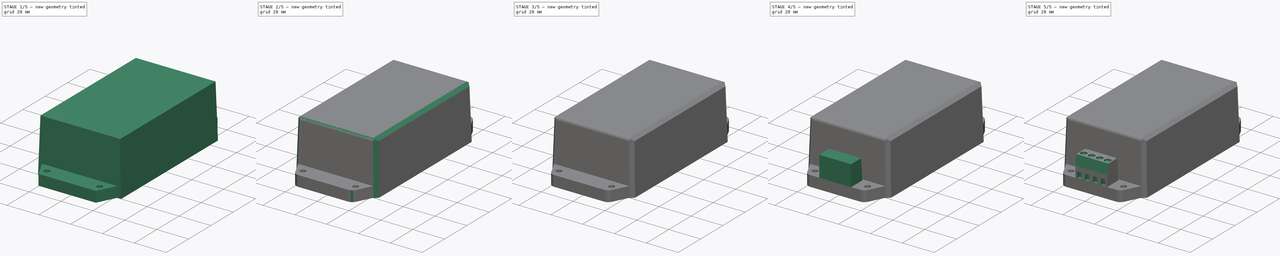
[diagram: build sequence overview — one tinted view per stage of 5, left to right]
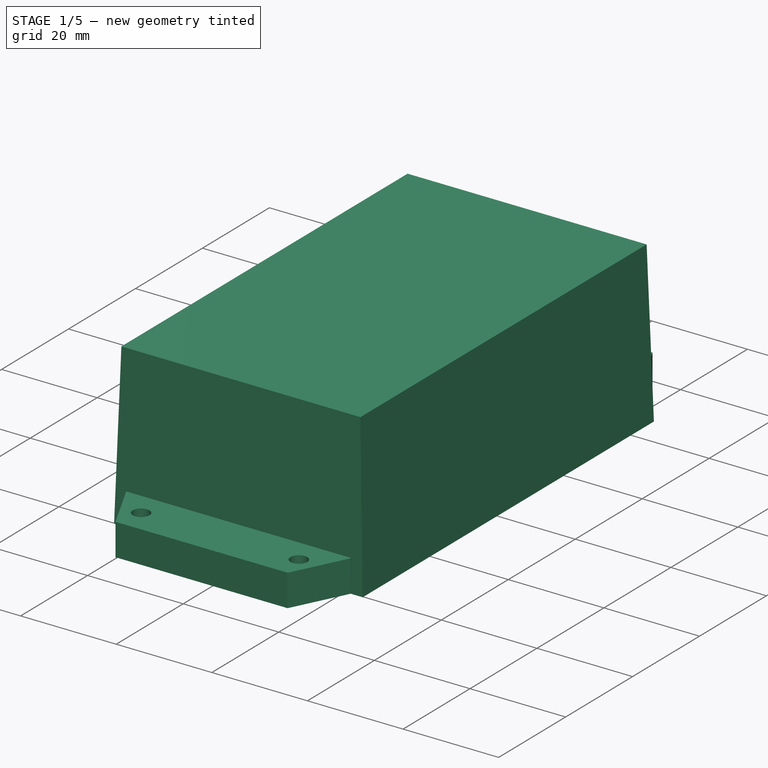
[diagram: stage 1 of 5 — iso view after this stage's code; geometry added in this stage tinted green]
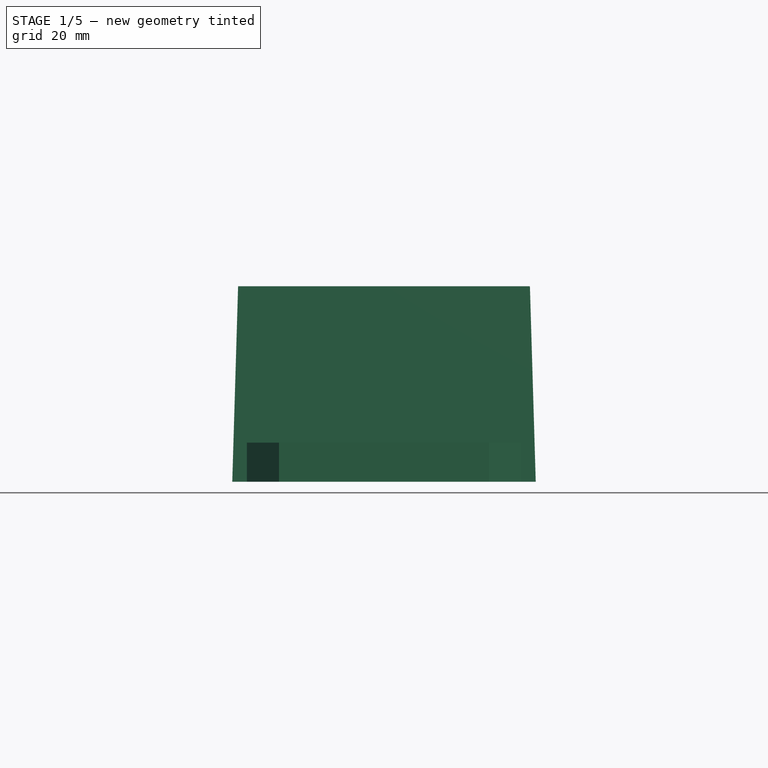
[diagram: stage 1 of 5 — front view after this stage's code; geometry added in this stage tinted green]
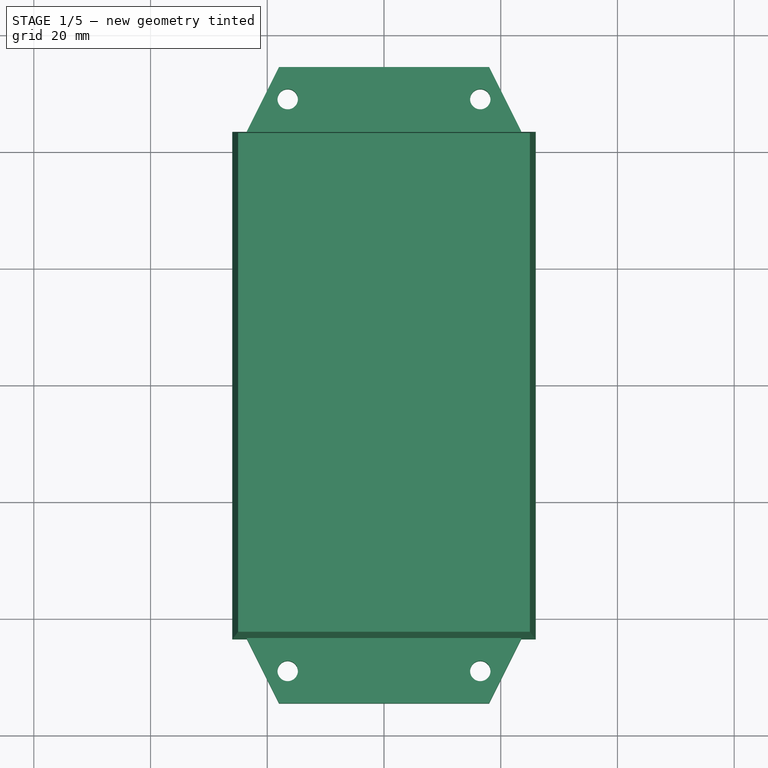
[diagram: stage 1 of 5 — top view after this stage's code; geometry added in this stage tinted green]
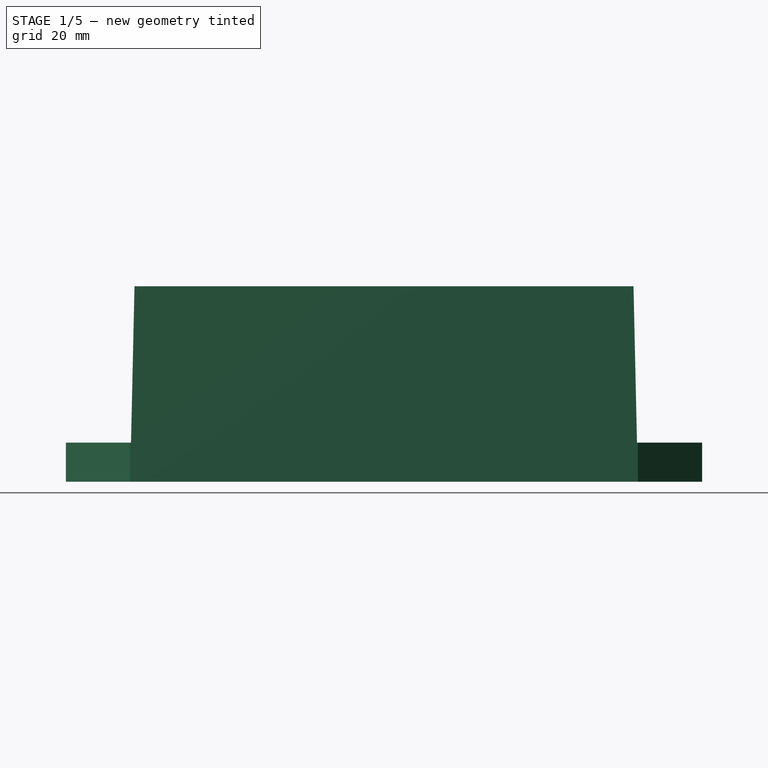
[diagram: stage 1 of 5 — right view after this stage's code; geometry added in this stage tinted green]
FCSTD DOCUMENT  (FreeCAD 0.16R6706 (Git))
Label: irm_60_12_st_power_supply
License: All rights reserved
LicenseURL: http://en.wikipedia.org/wiki/All_rights_reserved
objects: Sketcher::SketchObject×10, PartDesign::Pocket×5, PartDesign::Pad×3, PartDesign::Fillet×2, PartDesign::Draft×2, Part::Loft×1, Part::MultiFuse×1, PartDesign::Chamfer×1
note: 33 computed .brp shape members not serialized (recipe doc carries the construction recipe); baked Part::Feature solids carry a one-line shape summary decoded from their .brp

FEATURE [Sketcher::SketchObject] Sketch
  sketch-geometry (16):
    g0: LineSegment StartX=-18 StartY=54.5 StartZ=0 EndX=18 EndY=54.5 EndZ=0
    g1: LineSegment StartX=18 StartY=54.5 StartZ=0 EndX=23.5 EndY=43.5 EndZ=0
    g2: LineSegment StartX=23.5 StartY=43.5 StartZ=0 EndX=23.5 EndY=-43.5 EndZ=0
    g3: LineSegment StartX=23.5 StartY=-43.5 StartZ=0 EndX=18 EndY=-54.5 EndZ=0
    g4: LineSegment StartX=18 StartY=-54.5 StartZ=0 EndX=-18 EndY=-54.5 EndZ=0
    g5: LineSegment StartX=-18 StartY=-54.5 StartZ=0 EndX=-23.5 EndY=-43.5 EndZ=0
    g6: LineSegment StartX=-23.5 StartY=-43.5 StartZ=0 EndX=-23.5 EndY=43.5 EndZ=0
    g7: LineSegment StartX=-23.5 StartY=43.5 StartZ=0 EndX=-18 EndY=54.5 EndZ=0
    g8: LineSegment [constr] StartX=-16.5 StartY=49 StartZ=0 EndX=16.5 EndY=49 EndZ=0
    g9: LineSegment [constr] StartX=16.5 StartY=49 StartZ=0 EndX=16.5 EndY=-49 EndZ=0
    g10: LineSegment [constr] StartX=16.5 StartY=-49 StartZ=0 EndX=-16.5 EndY=-49 EndZ=0
    g11: LineSegment [constr] StartX=-16.5 StartY=-49 StartZ=0 EndX=-16.5 EndY=49 EndZ=0
    g12: Circle CenterX=-16.5 CenterY=49 CenterZ=0 NormalX=0 NormalY=0 NormalZ=1 Radius=1.75
    g13: Circle CenterX=16.5 CenterY=49 CenterZ=0 NormalX=0 NormalY=0 NormalZ=1 Radius=1.75
    g14: Circle CenterX=-16.5 CenterY=-49 CenterZ=0 NormalX=0 NormalY=0 NormalZ=1 Radius=1.75
    g15: Circle CenterX=16.5 CenterY=-49 CenterZ=0 NormalX=0 NormalY=0 NormalZ=1 Radius=1.75
  constraints (41):
    c: Horizontal(g0)
    c: Coincident(g0,g1)
    c: Coincident(g1,g2)
    c: Vertical(g2)
    c: Coincident(g2,g3)
    c: Coincident(g3,g4)
    c: Horizontal(g4)
    c: Coincident(g4,g5)
    c: Coincident(g5,g6)
    c: Vertical(g6)
    c: Coincident(g6,g7)
    c: Coincident(g7,g0)
    c: Symmetric(g0,g0,g-2)
    c: Symmetric(g6,g5,g-1)
    c: Symmetric(g4,g3,g-2)
    c: Symmetric(g1,g2,g-1)
    c: Symmetric(g6,g1,g-2)
    c: Symmetric(g0,g4,g-1)
    c: DistanceX(g6,g1) = 47
    c: DistanceY(g3,g0) = 109
    c: DistanceY(g2,g2) = 87
    c: DistanceX(g0,g0) = 36
    c: Coincident(g8,g9)
    c: Coincident(g9,g10)
    c: Coincident(g10,g11)
    c: Coincident(g11,g8)
    c: Horizontal(g8)
    c: Horizontal(g10)
    c: Vertical(g9)
    c: Vertical(g11)
    c: Coincident(g12,g8)
    c: Coincident(g13,g8)
    c: Coincident(g14,g10)
    c: Coincident(g15,g9)
    c: Equal(g12,g13)
    c: Equal(g13,g14)
    c: Equal(g14,g15)
    c: Symmetric(g9,g8,g-1)
    c: Radius(g13) = 1.75
    c: DistanceX(g8,g8) = 33
    c: DistanceY(g9,g9) = 98
FEATURE [PartDesign::Pad] Pad  label="base"
  Length = 6.7
  Length2 = 100
  Sketch = -> Sketch
  Type = 0
FEATURE [Sketcher::SketchObject] Sketch001  label="body_bottom"
  sketch-geometry (4):
    g0: LineSegment StartX=-26 StartY=43.5 StartZ=0 EndX=26 EndY=43.5 EndZ=0
    g1: LineSegment StartX=26 StartY=43.5 StartZ=0 EndX=26 EndY=-43.5 EndZ=0
    g2: LineSegment StartX=26 StartY=-43.5 StartZ=0 EndX=-26 EndY=-43.5 EndZ=0
    g3: LineSegment StartX=-26 StartY=-43.5 StartZ=0 EndX=-26 EndY=43.5 EndZ=0
  constraints (11):
    c: Coincident(g0,g1)
    c: Coincident(g1,g2)
    c: Coincident(g2,g3)
    c: Coincident(g3,g0)
    c: Horizontal(g0)
    c: Horizontal(g2)
    c: Vertical(g1)
    c: Vertical(g3)
    c: DistanceX(g0,g0) = 52
    c: DistanceY(g1,g1) = 87
    c: Symmetric(g0,g1,g-1)
FEATURE [Sketcher::SketchObject] Sketch002  label="body_top"
  Placement = pos=(0,0,33.5) rot=(0,0,1;0rad)
  sketch-geometry (4):
    g0: LineSegment StartX=-25 StartY=42.75 StartZ=0 EndX=25 EndY=42.75 EndZ=0
    g1: LineSegment StartX=25 StartY=42.75 StartZ=0 EndX=25 EndY=-42.75 EndZ=0
    g2: LineSegment StartX=25 StartY=-42.75 StartZ=0 EndX=-25 EndY=-42.75 EndZ=0
    g3: LineSegment StartX=-25 StartY=-42.75 StartZ=0 EndX=-25 EndY=42.75 EndZ=0
  constraints (11):
    c: Coincident(g0,g1)
    c: Coincident(g1,g2)
    c: Coincident(g2,g3)
    c: Coincident(g3,g0)
    c: Horizontal(g0)
    c: Horizontal(g2)
    c: Vertical(g1)
    c: Vertical(g3)
    c: Symmetric(g0,g1,g-1)
    c: DistanceX(g0,g0) = 50
    c: DistanceY(g1,g1) = 85.5
FEATURE [Part::Loft] Loft  label="body"
  Closed = false
  Ruled = false
  Sections = -> [Sketch001,Sketch002]
  Solid = true
FEATURE [Part::MultiFuse] Fusion
  Shapes = -> [Loft,Pad]
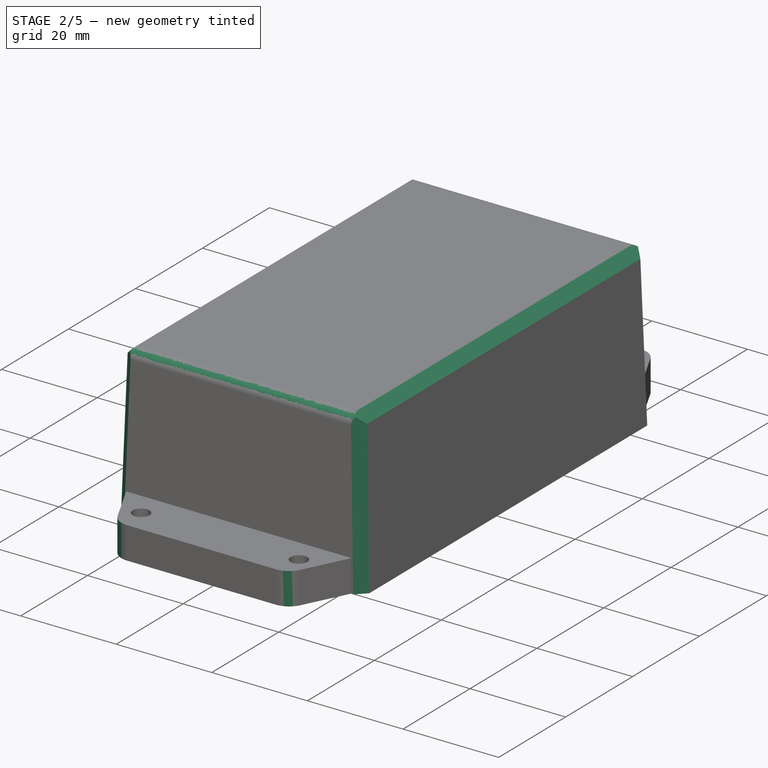
[diagram: stage 2 of 5 — iso view after this stage's code; geometry added in this stage tinted green]
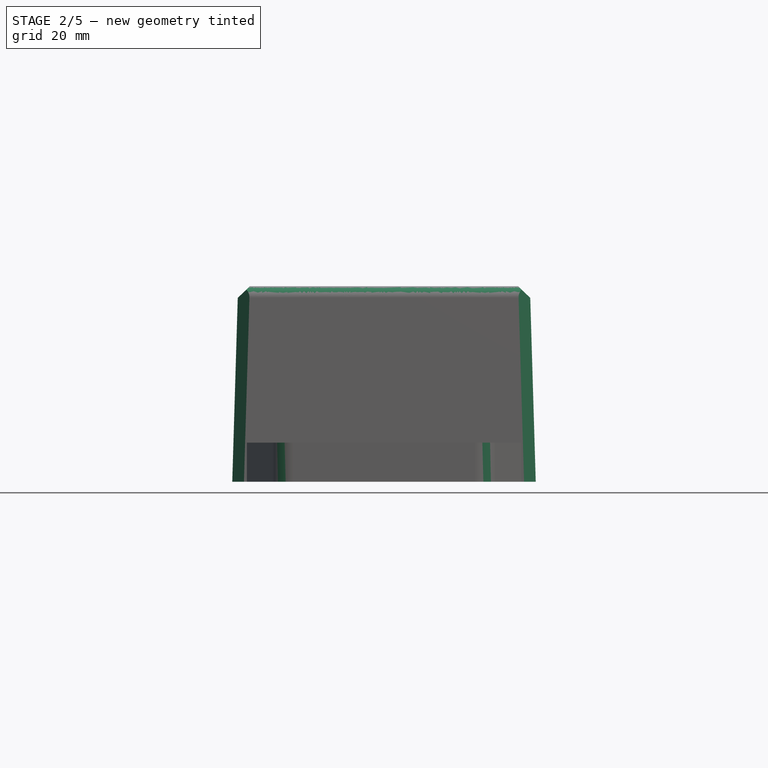
[diagram: stage 2 of 5 — front view after this stage's code; geometry added in this stage tinted green]
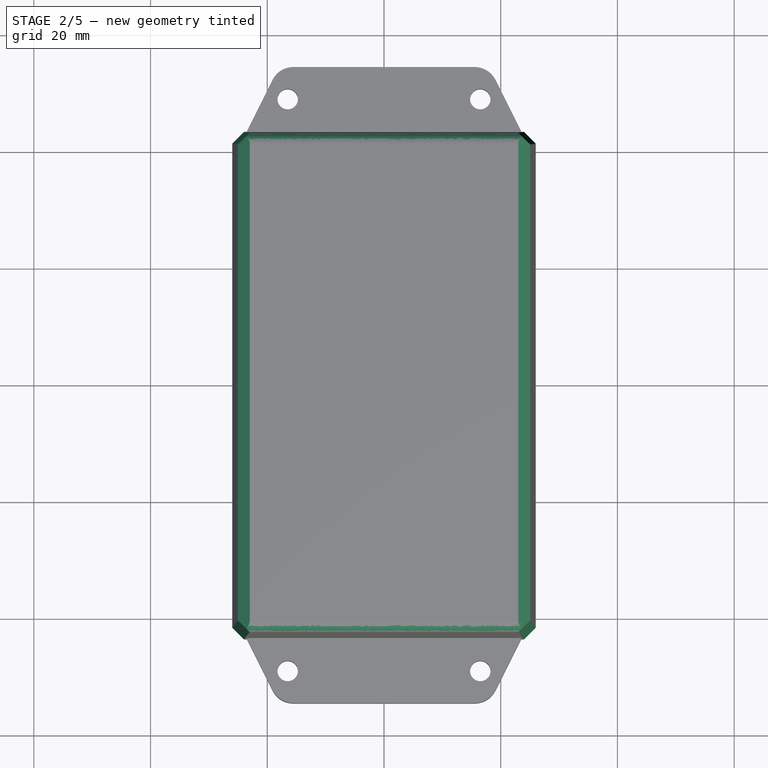
[diagram: stage 2 of 5 — top view after this stage's code; geometry added in this stage tinted green]
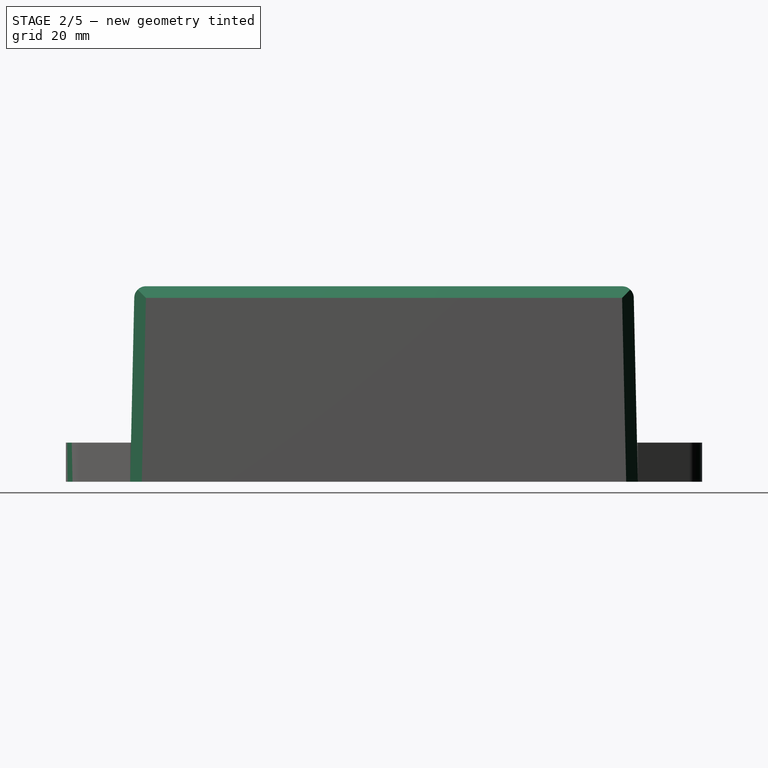
[diagram: stage 2 of 5 — right view after this stage's code; geometry added in this stage tinted green]
FEATURE [PartDesign::Chamfer] Chamfer  label="box_chamfers"
  Base = -> Fusion [Edge16,Edge14,Edge9,Edge2,Edge3,Edge4]
  Size = 2
FEATURE [PartDesign::Fillet] Fillet  label="box_fillets"
  Base = -> Chamfer [Edge15,Edge24]
  Radius = 2
FEATURE [PartDesign::Fillet] Fillet001  label="base_fillets"
  Base = -> Fillet [Edge81,Edge82,Edge60,Edge58]
  Radius = 4
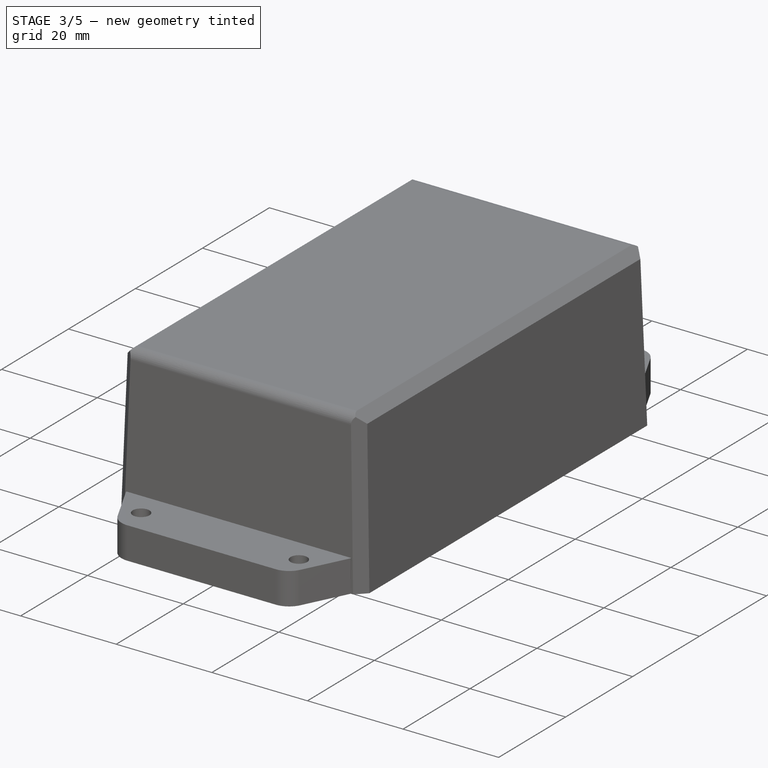
[diagram: stage 3 of 5 — iso view after this stage's code; geometry added in this stage tinted green]
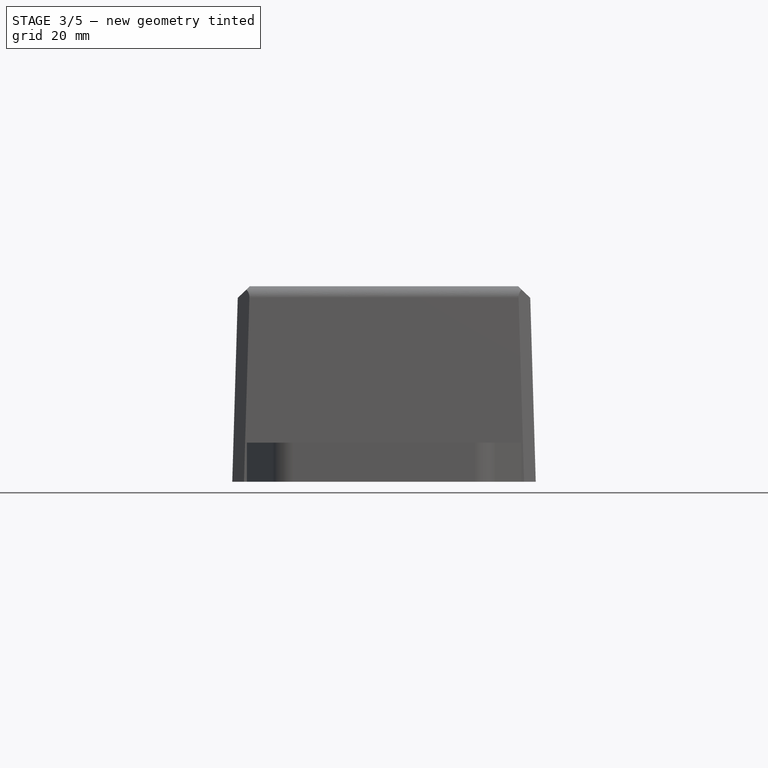
[diagram: stage 3 of 5 — front view after this stage's code; geometry added in this stage tinted green]
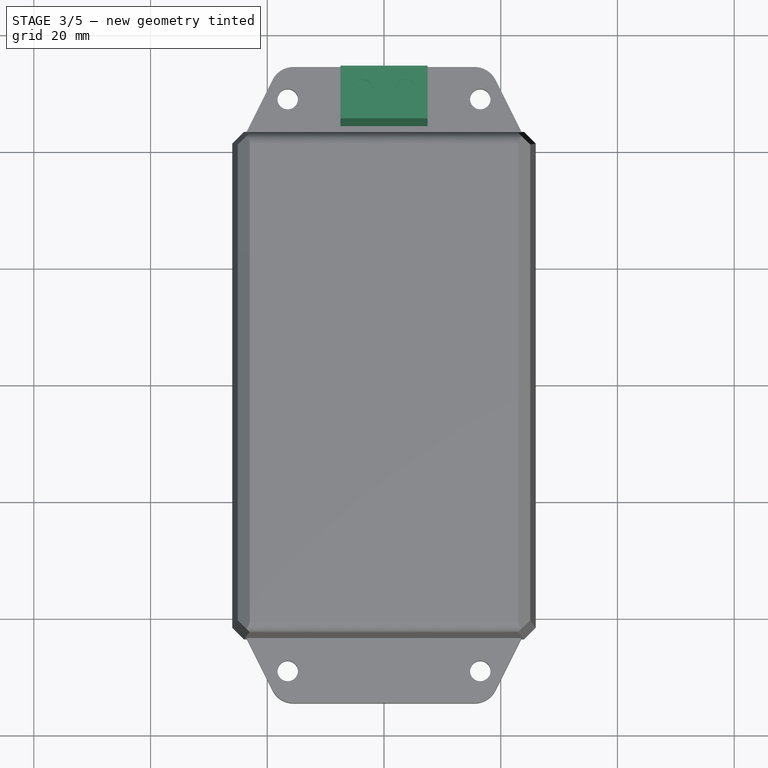
[diagram: stage 3 of 5 — top view after this stage's code; geometry added in this stage tinted green]
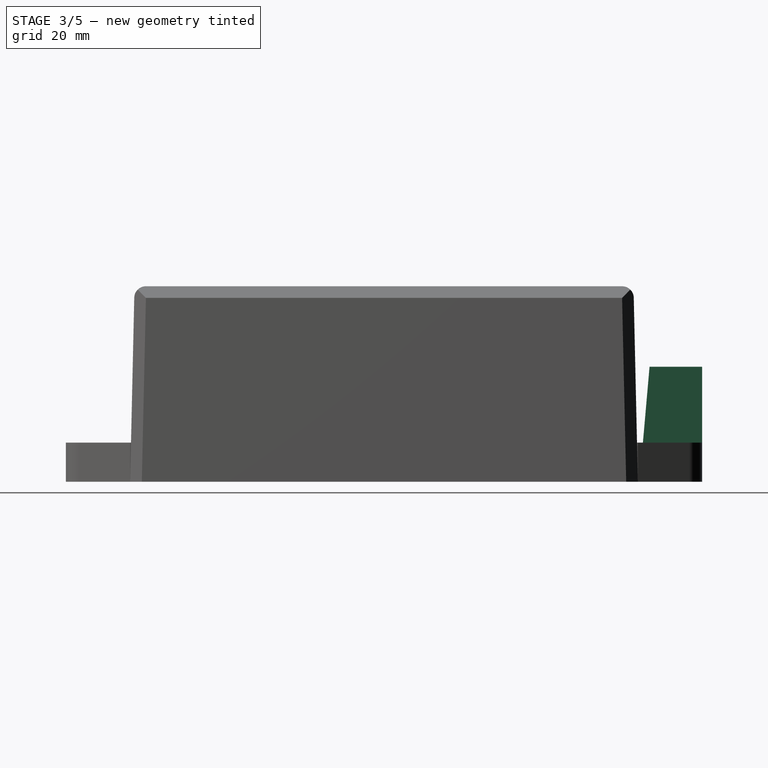
[diagram: stage 3 of 5 — right view after this stage's code; geometry added in this stage tinted green]
FEATURE [Sketcher::SketchObject] Sketch003
  ExternalGeometry = -> [Fillet001]
  Placement = pos=(0,0,6.7) rot=(0,0,1;0rad)
  Support = -> Fillet001 [Face30]
  sketch-geometry (4):
    g0: LineSegment StartX=-7.475 StartY=54.5 StartZ=0 EndX=7.475 EndY=54.5 EndZ=0
    g1: LineSegment StartX=7.475 StartY=54.5 StartZ=0 EndX=7.475 EndY=45.5 EndZ=0
    g2: LineSegment StartX=7.475 StartY=45.5 StartZ=0 EndX=-7.475 EndY=45.5 EndZ=0
    g3: LineSegment StartX=-7.475 StartY=45.5 StartZ=0 EndX=-7.475 EndY=54.5 EndZ=0
  constraints (12):
    c: Coincident(g0,g1)
    c: Coincident(g1,g2)
    c: Coincident(g2,g3)
    c: Coincident(g3,g0)
    c: Horizontal(g0)
    c: Horizontal(g2)
    c: Vertical(g1)
    c: Vertical(g3)
    c: PointOnObject(g0,g-3)
    c: Symmetric(g0,g0,g-2)
    c: DistanceX(g0,g0) = 14.95
    c: DistanceY(g1,g1) = 9
FEATURE [PartDesign::Pad] Pad001  label="input_screw_terminal"
  Length = 13
  Length2 = 100
  Sketch = -> Sketch003
  Type = 0
FEATURE [PartDesign::Draft] Draft  label="input_draft"
  Angle = 5
  Base = -> Pad001 [Face4]
  NeutralPlane = -> Pad001 [Face1]
FEATURE [Sketcher::SketchObject] Sketch004
  Placement = pos=(0,0,19.7) rot=(0,0,1;0rad)
  Support = -> Draft [Face1]
  sketch-geometry (2):
    g0: Circle CenterX=-3.75 CenterY=50.2024 CenterZ=0 NormalX=0 NormalY=0 NormalZ=1 Radius=1.95
    g1: Circle CenterX=3.75 CenterY=50.2024 CenterZ=0 NormalX=0 NormalY=0 NormalZ=1 Radius=1.95
  constraints (4):
    c: Symmetric(g0,g1,g-2)
    c: Equal(g0,g1)
    c: DistanceX(g0,g1) = 7.5
    c: Radius(g1) = 1.95
FEATURE [PartDesign::Pocket] Pocket  label="input_screws"
  Length = 1
  Sketch = -> Sketch004
  Type = 0
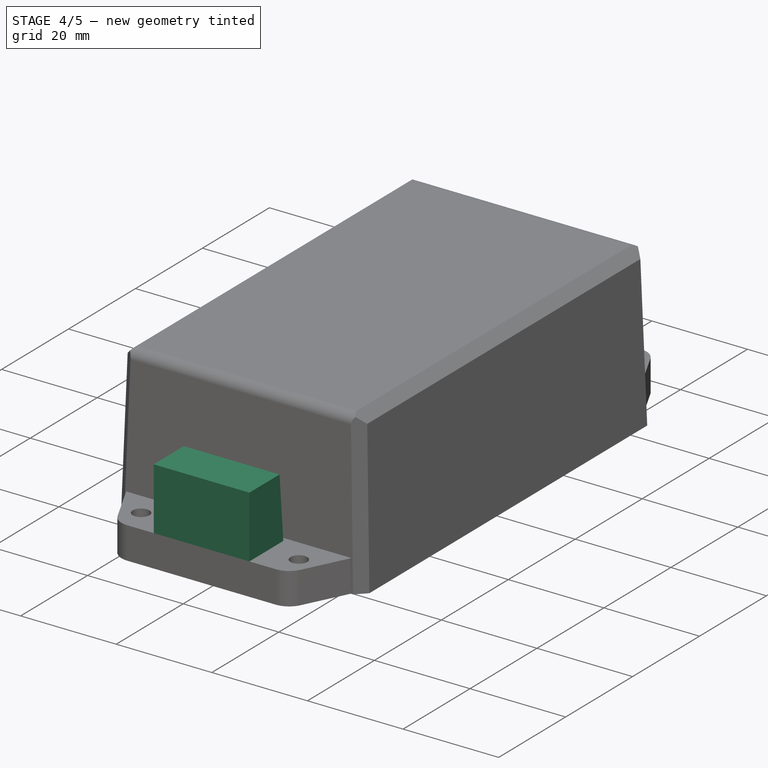
[diagram: stage 4 of 5 — iso view after this stage's code; geometry added in this stage tinted green]
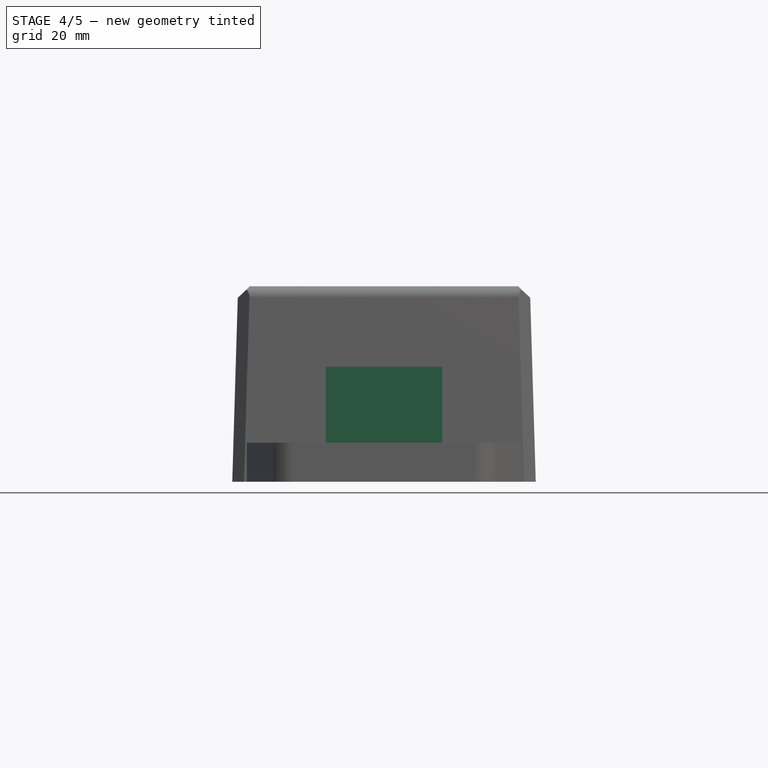
[diagram: stage 4 of 5 — front view after this stage's code; geometry added in this stage tinted green]
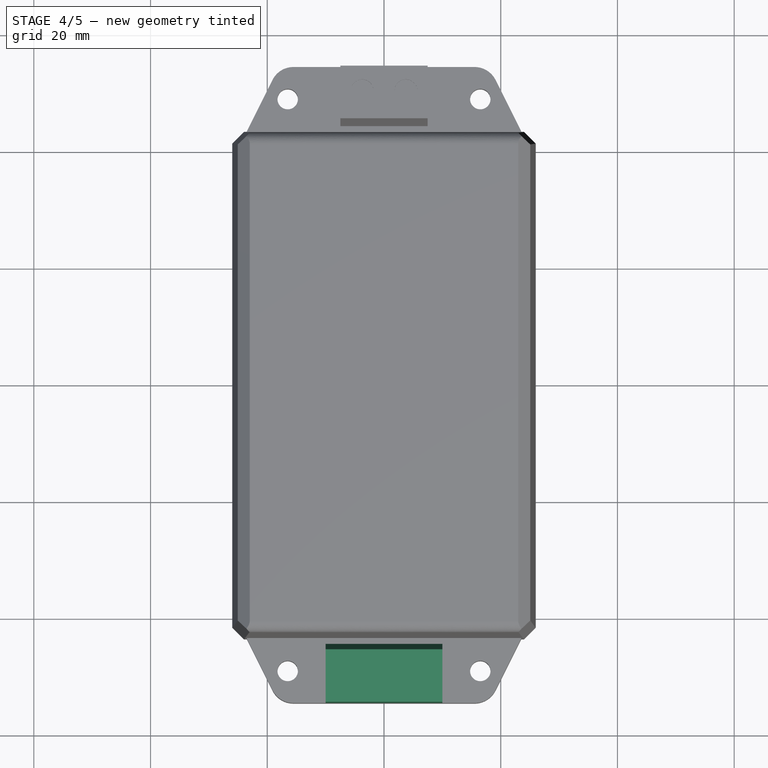
[diagram: stage 4 of 5 — top view after this stage's code; geometry added in this stage tinted green]
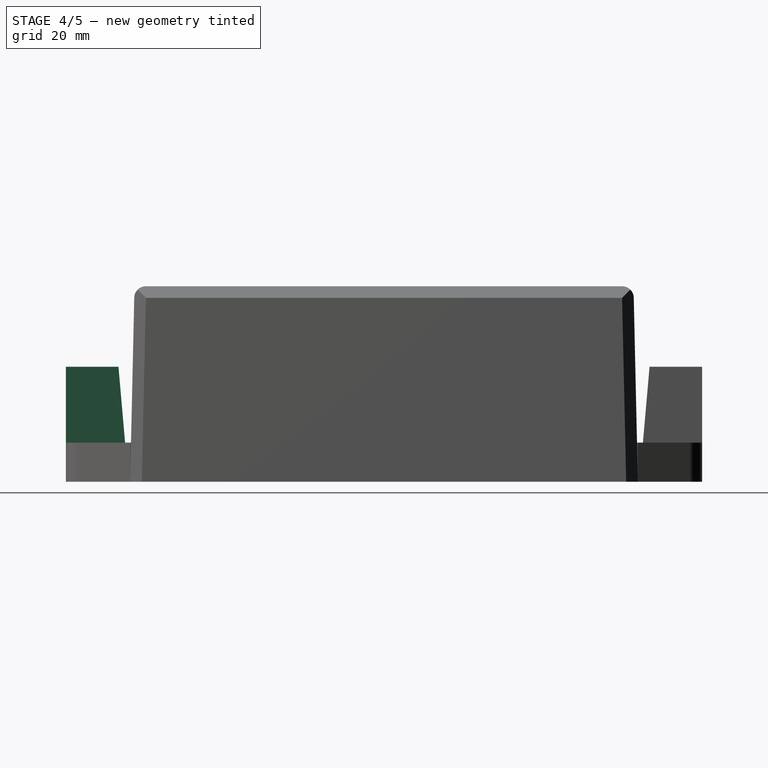
[diagram: stage 4 of 5 — right view after this stage's code; geometry added in this stage tinted green]
FEATURE [Sketcher::SketchObject] Sketch005
  Placement = pos=(0,54.5,0) rot=(0,0.707107,0.707107;3.14159rad)
  Support = -> Pocket [Face2]
  sketch-geometry (9):
    g0: LineSegment StartX=-5.29 StartY=10.3872 StartZ=0 EndX=-2.21 EndY=10.3872 EndZ=0
    g1: LineSegment StartX=-2.21 StartY=10.3872 StartZ=0 EndX=-2.21 EndY=6.75722 EndZ=0
    g2: LineSegment StartX=-2.21 StartY=6.75722 StartZ=0 EndX=-5.29 EndY=6.75722 EndZ=0
    g3: LineSegment StartX=-5.29 StartY=6.75722 StartZ=0 EndX=-5.29 EndY=10.3872 EndZ=0
    g4: LineSegment StartX=2.21 StartY=10.3872 StartZ=0 EndX=5.29 EndY=10.3872 EndZ=0
    g5: LineSegment StartX=5.29 StartY=10.3872 StartZ=0 EndX=5.29 EndY=6.75722 EndZ=0
    g6: LineSegment StartX=5.29 StartY=6.75722 StartZ=0 EndX=2.21 EndY=6.75722 EndZ=0
    g7: LineSegment StartX=2.21 StartY=6.75722 StartZ=0 EndX=2.21 EndY=10.3872 EndZ=0
    g8: LineSegment [constr] StartX=-3.75 StartY=8.57222 StartZ=0 EndX=3.75 EndY=8.57222 EndZ=0
  constraints (25):
    c: Coincident(g0,g1)
    c: Coincident(g1,g2)
    c: Coincident(g2,g3)
    c: Coincident(g3,g0)
    c: Horizontal(g0)
    c: Horizontal(g2)
    c: Vertical(g1)
    c: Vertical(g3)
    c: Coincident(g4,g5)
    c: Coincident(g5,g6)
    c: Coincident(g6,g7)
    c: Coincident(g7,g4)
    c: Horizontal(g4)
    c: Horizontal(g6)
    c: Vertical(g5)
    c: Vertical(g7)
    c: Horizontal(g8)
    c: Symmetric(g4,g5,g8)
    c: Symmetric(g0,g1,g8)
    c: Symmetric(g8,g8,g-2)
    c: Equal(g0,g4)
    c: Equal(g1,g7)
    c: DistanceX(g8,g8) = 7.5
    c: DistanceX(g0,g0) = 3.08
    c: DistanceY(g3,g3) = 3.63
FEATURE [PartDesign::Pocket] Pocket001  label="input_cable_terminals"
  Length = 2
  Sketch = -> Sketch005
  Type = 0
FEATURE [Sketcher::SketchObject] Sketch006
  ExternalGeometry = -> [Pocket001]
  Placement = pos=(0,0,6.7) rot=(0,0,1;0rad)
  Support = -> Pocket001 [Face56]
  sketch-geometry (4):
    g0: LineSegment StartX=-10 StartY=-54.5 StartZ=0 EndX=10 EndY=-54.5 EndZ=0
    g1: LineSegment StartX=10 StartY=-54.5 StartZ=0 EndX=10 EndY=-45.5 EndZ=0
    g2: LineSegment StartX=10 StartY=-45.5 StartZ=0 EndX=-10 EndY=-45.5 EndZ=0
    g3: LineSegment StartX=-10 StartY=-45.5 StartZ=0 EndX=-10 EndY=-54.5 EndZ=0
  constraints (12):
    c: Coincident(g0,g1)
    c: Coincident(g1,g2)
    c: Coincident(g2,g3)
    c: Coincident(g3,g0)
    c: Horizontal(g0)
    c: Horizontal(g2)
    c: Vertical(g1)
    c: Vertical(g3)
    c: PointOnObject(g0,g-3)
    c: Symmetric(g0,g0,g-2)
    c: DistanceY(g1,g1) = 9
    c: DistanceX(g0,g0) = 20
FEATURE [PartDesign::Pad] Pad002  label="output_screw_terminals"
  Length = 13
  Length2 = 100
  Sketch = -> Sketch006
  Type = 0
FEATURE [PartDesign::Draft] Draft001  label="output_draft"
  Angle = 5
  Base = -> Pad002 [Face60]
  NeutralPlane = -> Pad002 [Face62]
  Reversed = true
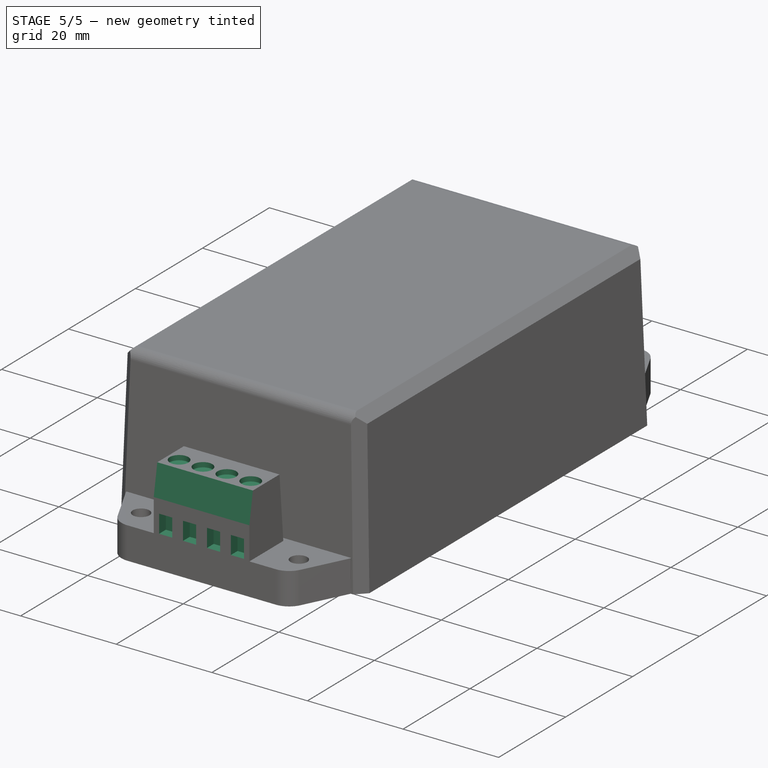
[diagram: stage 5 of 5 — iso view after this stage's code; geometry added in this stage tinted green]
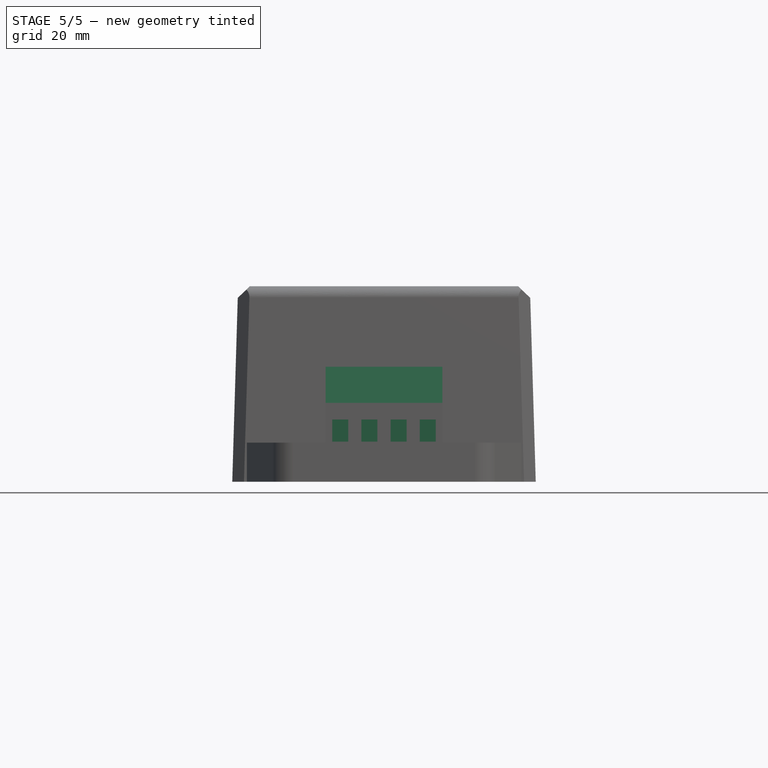
[diagram: stage 5 of 5 — front view after this stage's code; geometry added in this stage tinted green]
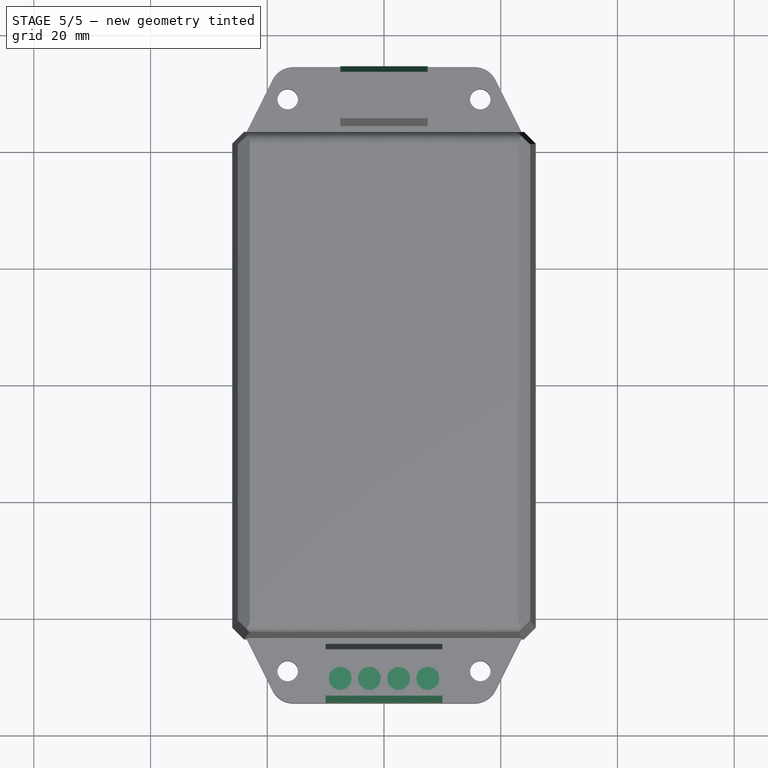
[diagram: stage 5 of 5 — top view after this stage's code; geometry added in this stage tinted green]
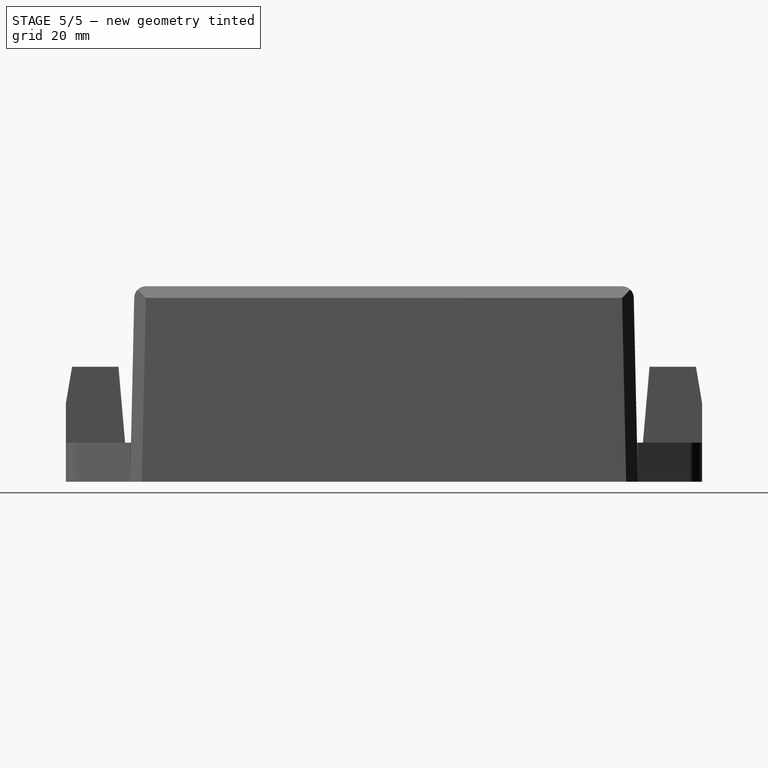
[diagram: stage 5 of 5 — right view after this stage's code; geometry added in this stage tinted green]
FEATURE [Sketcher::SketchObject] Sketch007
  Placement = pos=(0,0,19.7) rot=(0,0,1;0rad)
  Support = -> Draft001 [Face62]
  sketch-geometry (5):
    g0: LineSegment [constr] StartX=-7.5 StartY=-50.5051 StartZ=0 EndX=7.5 EndY=-50.5051 EndZ=0
    g1: Circle CenterX=-7.5 CenterY=-50.5051 CenterZ=0 NormalX=0 NormalY=0 NormalZ=1 Radius=1.95
    g2: Circle CenterX=7.5 CenterY=-50.5051 CenterZ=0 NormalX=0 NormalY=0 NormalZ=1 Radius=1.95
    g3: Circle CenterX=2.5 CenterY=-50.5051 CenterZ=0 NormalX=0 NormalY=0 NormalZ=1 Radius=1.95
    g4: Circle CenterX=-2.5 CenterY=-50.5051 CenterZ=0 NormalX=0 NormalY=0 NormalZ=1 Radius=1.95
  constraints (14):
    c: Horizontal(g0)
    c: Coincident(g1,g0)
    c: Coincident(g2,g0)
    c: PointOnObject(g3,g0)
    c: PointOnObject(g4,g0)
    c: Symmetric(g0,g0,g-2)
    c: Symmetric(g4,g3,g-2)
    c: Equal(g1,g4)
    c: Equal(g4,g3)
    c: Equal(g3,g2)
    c: Radius(g2) = 1.95
    c: DistanceX(g0,g4) = 5
    c: DistanceX(g4,g3) = 5
    c: DistanceX(g3,g0) = 5
FEATURE [PartDesign::Pocket] Pocket002  label="output_screws"
  Length = 1
  Sketch = -> Sketch007
  Type = 0
FEATURE [Sketcher::SketchObject] Sketch008
  Placement = pos=(0,-54.5,0) rot=(1,0,0;1.5708rad)
  Support = -> Pocket002 [Face58]
  sketch-geometry (19):
    g0: LineSegment StartX=-8.875 StartY=10.6772 StartZ=0 EndX=-6.125 EndY=10.6772 EndZ=0
    g1: LineSegment StartX=-6.125 StartY=10.6772 StartZ=0 EndX=-6.125 EndY=6.87721 EndZ=0
    g2: LineSegment StartX=-6.125 StartY=6.87721 StartZ=0 EndX=-8.875 EndY=6.87721 EndZ=0
    g3: LineSegment StartX=-8.875 StartY=6.87721 StartZ=0 EndX=-8.875 EndY=10.6772 EndZ=0
    g4: LineSegment StartX=-3.875 StartY=10.6772 StartZ=0 EndX=-1.125 EndY=10.6772 EndZ=0
    g5: LineSegment StartX=-1.125 StartY=10.6772 StartZ=0 EndX=-1.125 EndY=6.87721 EndZ=0
    g6: LineSegment StartX=-1.125 StartY=6.87721 StartZ=0 EndX=-3.875 EndY=6.87721 EndZ=0
    g7: LineSegment StartX=-3.875 StartY=6.87721 StartZ=0 EndX=-3.875 EndY=10.6772 EndZ=0
    g8: LineSegment StartX=1.125 StartY=10.6772 StartZ=0 EndX=3.875 EndY=10.6772 EndZ=0
    g9: LineSegment StartX=3.875 StartY=10.6772 StartZ=0 EndX=3.875 EndY=6.87721 EndZ=0
    g10: LineSegment StartX=3.875 StartY=6.87721 StartZ=0 EndX=1.125 EndY=6.87721 EndZ=0
    g11: LineSegment StartX=1.125 StartY=6.87721 StartZ=0 EndX=1.125 EndY=10.6772 EndZ=0
    g12: LineSegment StartX=6.125 StartY=10.6772 StartZ=0 EndX=8.875 EndY=10.6772 EndZ=0
    g13: LineSegment StartX=8.875 StartY=10.6772 StartZ=0 EndX=8.875 EndY=6.87721 EndZ=0
    g14: LineSegment StartX=8.875 StartY=6.87721 StartZ=0 EndX=6.125 EndY=6.87721 EndZ=0
    g15: LineSegment StartX=6.125 StartY=6.87721 StartZ=0 EndX=6.125 EndY=10.6772 EndZ=0
    g16: LineSegment [constr] StartX=-7.5 StartY=8.77721 StartZ=0 EndX=7.5 EndY=8.77721 EndZ=0
    g17: GeomPoint [constr] X=-2.5 Y=8.77721 Z=0
    g18: GeomPoint [constr] X=2.5 Y=8.77721 Z=0
  constraints (51):
    c: Coincident(g0,g1)
    c: Coincident(g1,g2)
    c: Coincident(g2,g3)
    c: Coincident(g3,g0)
    c: Horizontal(g0)
    c: Horizontal(g2)
    c: Vertical(g1)
    c: Vertical(g3)
    c: DistanceX(g0,g0) = 2.75
    c: DistanceY(g1,g1) = 3.8
    c: Coincident(g4,g5)
    c: Coincident(g5,g6)
    c: Coincident(g6,g7)
    c: Coincident(g7,g4)
    c: Horizontal(g4)
    c: Horizontal(g6)
    c: Vertical(g5)
    c: Vertical(g7)
    c: Coincident(g8,g9)
    c: Coincident(g9,g10)
    c: Coincident(g10,g11)
    c: Coincident(g11,g8)
    c: Horizontal(g8)
    c: Horizontal(g10)
    c: Vertical(g9)
    c: Vertical(g11)
    c: Coincident(g12,g13)
    c: Coincident(g13,g14)
    c: Coincident(g14,g15)
    c: Coincident(g15,g12)
    c: Horizontal(g12)
    c: Horizontal(g14)
    c: Vertical(g13)
    c: Vertical(g15)
    c: Horizontal(g16)
    c: Equal(g0,g4)
    c: Equal(g4,g8)
    c: Equal(g8,g12)
    c: Equal(g1,g5)
    c: Equal(g5,g9)
    c: Equal(g9,g13)
    c: Symmetric(g0,g1,g16)
    c: Symmetric(g12,g13,g16)
    c: PointOnObject(g17,g16)
    c: PointOnObject(g18,g16)
    c: Symmetric(g4,g5,g17)
    c: Symmetric(g8,g9,g18)
    c: DistanceX(g16,g17) = 5
    c: DistanceX(g17,g18) = 5
    c: DistanceX(g18,g16) = 5
    c: Symmetric(g16,g16,g-2)
FEATURE [PartDesign::Pocket] Pocket003  label="output_cable_terminals"
  Length = 2
  Sketch = -> Sketch008
  Type = 0
FEATURE [Sketcher::SketchObject] Sketch009
  Placement = pos=(10,0,0) rot=(0.57735,0.57735,0.57735;2.0944rad)
  Support = -> Pocket003 [Face59]
  sketch-geometry (6):
    g0: LineSegment StartX=-53.1655 StartY=21.3761 StartZ=0 EndX=-55.1563 EndY=9.66319 EndZ=0
    g1: LineSegment StartX=-55.1563 StartY=9.66319 StartZ=0 EndX=-55.1563 EndY=20.9313 EndZ=0
    g2: LineSegment StartX=-55.1563 StartY=20.9313 StartZ=0 EndX=-53.1655 EndY=21.3761 EndZ=0
    g3: LineSegment StartX=53.1655 StartY=21.3761 StartZ=0 EndX=55.1563 EndY=9.66319 EndZ=0
    g4: LineSegment StartX=55.1563 StartY=9.66319 StartZ=0 EndX=56.2675 EndY=21.3761 EndZ=0
    g5: LineSegment StartX=56.2675 StartY=21.3761 StartZ=0 EndX=53.1655 EndY=21.3761 EndZ=0
  constraints (10):
    c: Coincident(g0,g1)
    c: Vertical(g1)
    c: Coincident(g1,g2)
    c: Coincident(g2,g0)
    c: Coincident(g3,g4)
    c: Coincident(g4,g5)
    c: Coincident(g5,g3)
    c: Horizontal(g5)
    c: Symmetric(g0,g3,g-2)
    c: Symmetric(g0,g3,g-2)
FEATURE [PartDesign::Pocket] Pocket004  label="second_draft"
  Length = 100
  Sketch = -> Sketch009
  Type = 0
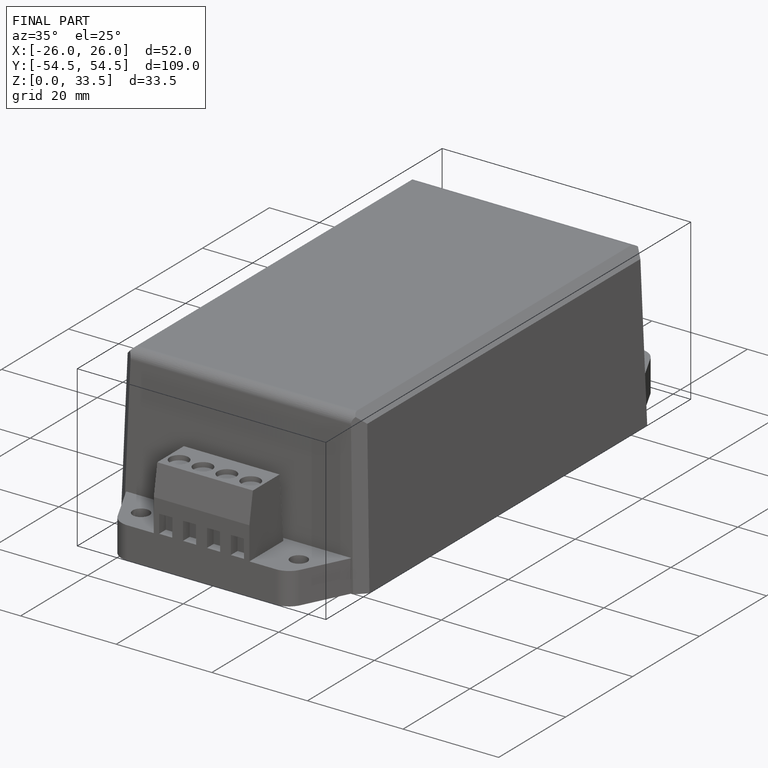
[diagram: finished part — iso view with bounding-box wireframe]
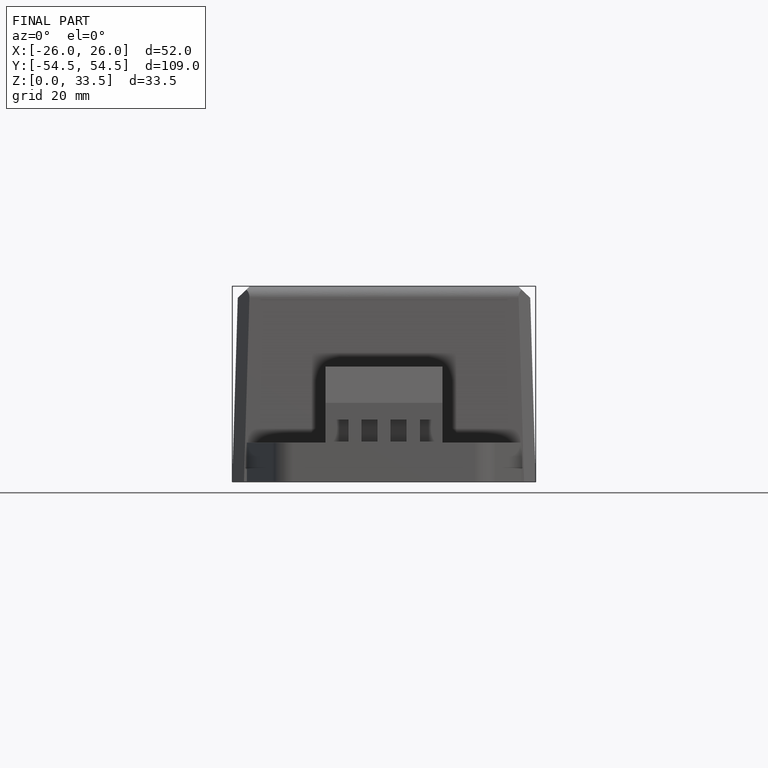
[diagram: finished part — front view with bounding-box wireframe]
